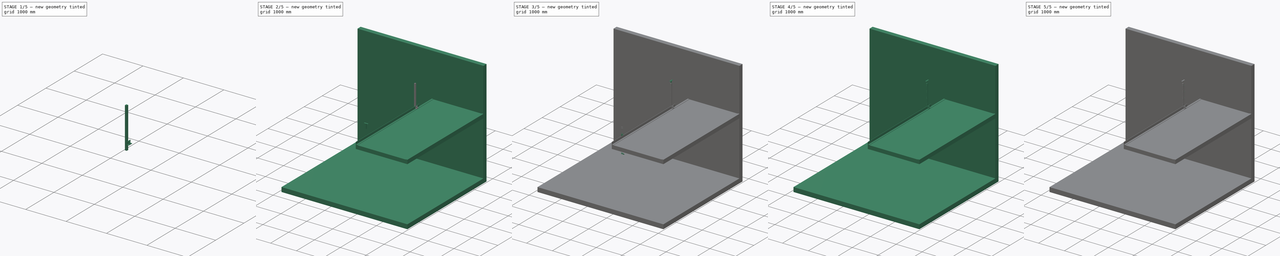
[diagram: build sequence overview — one tinted view per stage of 5, left to right]
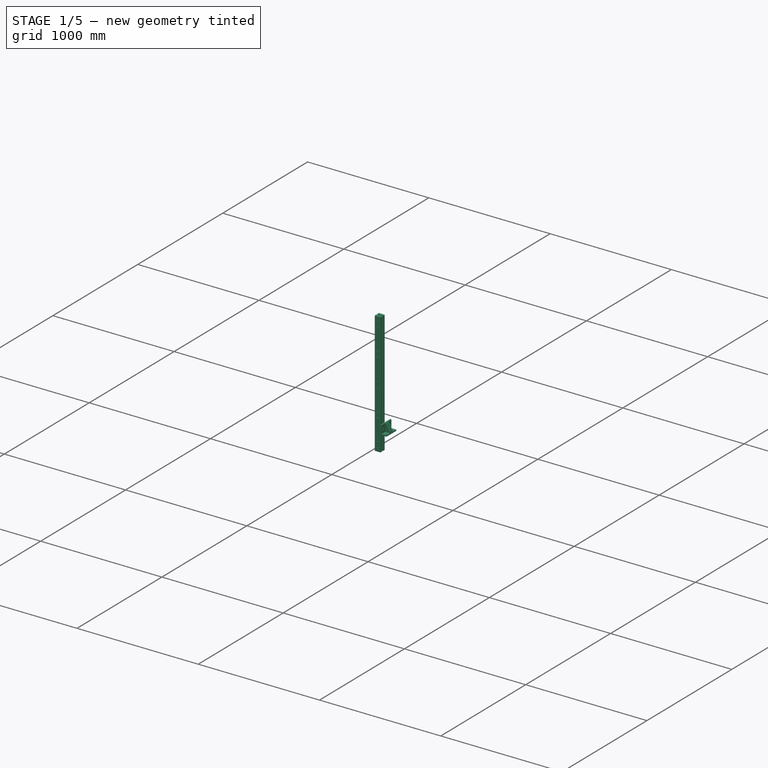
[diagram: stage 1 of 5 — iso view after this stage's code; geometry added in this stage tinted green]
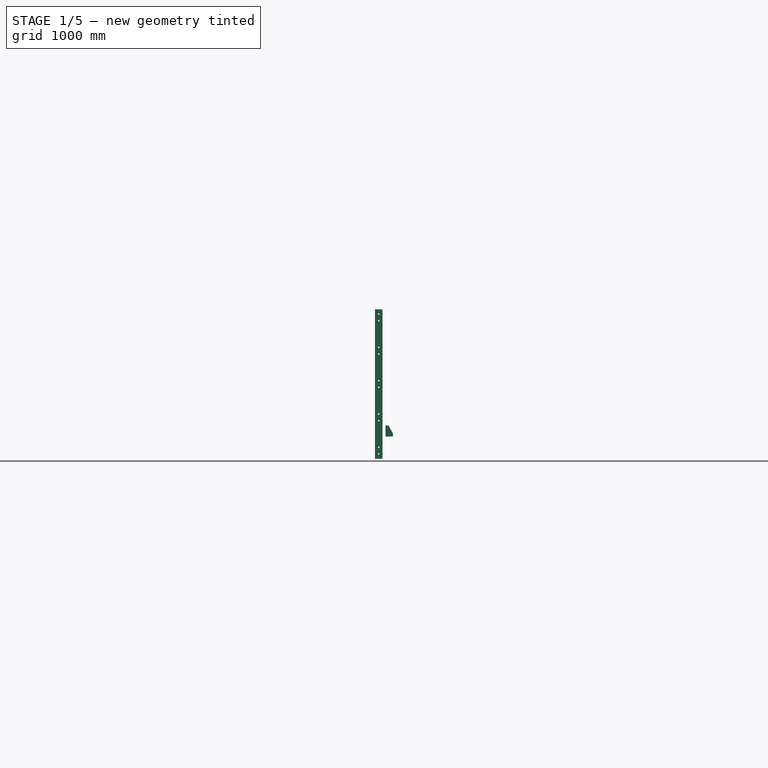
[diagram: stage 1 of 5 — front view after this stage's code; geometry added in this stage tinted green]
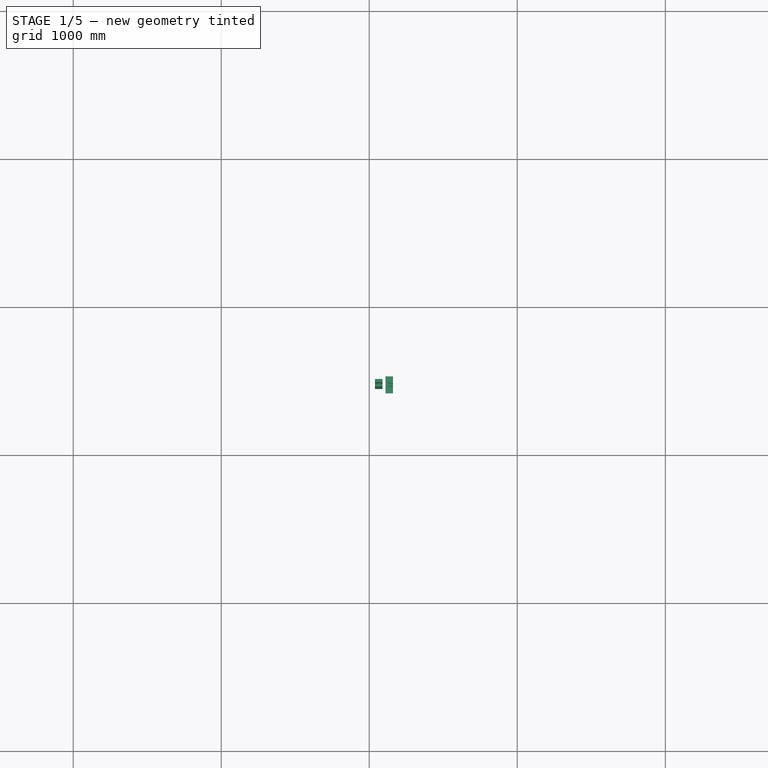
[diagram: stage 1 of 5 — top view after this stage's code; geometry added in this stage tinted green]
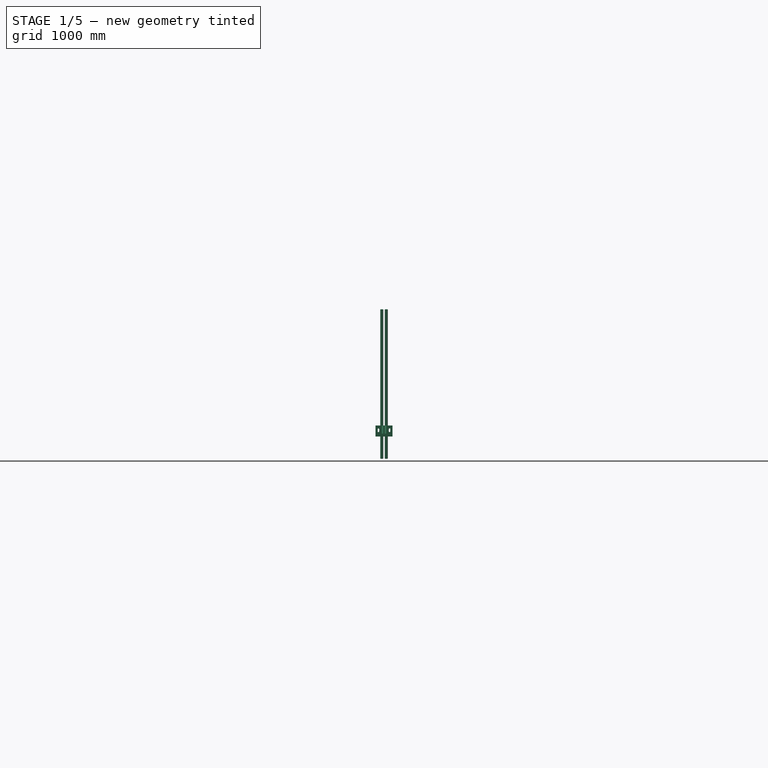
[diagram: stage 1 of 5 — right view after this stage's code; geometry added in this stage tinted green]
FCSTD DOCUMENT  (FreeCAD 0.17R11051 (Git))
Label: loft_railing_element
License: All rights reserved
LicenseURL: http://en.wikipedia.org/wiki/All_rights_reserved
objects: Part::Extrusion×19, Part::Part2DObjectPython×18, Part::FeaturePython×16, Part::Cut×9, Part::Compound×8, Part::Chamfer×4, Part::Feature×4, Sketcher::SketchObject×4, PartDesign::Pad×3, TechDraw::DrawProjGroupItem×3, PartDesign::ShapeBinder×2, PartDesign::Body×2, TechDraw::DrawViewPart×2, Part::Box×1, Part::Mirroring×1, Part::Torus×1, Part::Cylinder×1, Part::MultiFuse×1, App::DocumentObjectGroup×1, PartDesign::Pocket×1, +4 more types
note: 100 computed .brp shape members not serialized (recipe doc carries the construction recipe); baked Part::Feature solids carry a one-line shape summary decoded from their .brp

FEATURE [Part::Box] Box  label="Cube"
  AttacherType = Attacher::AttachEngine3D
  Height = 1010
  Length = 20
  Placement = pos=(-25,-23,-70) rot=(0,0,1;0rad)
  Width = 50
FEATURE [Part::Mirroring] mirror  label="Mirror of Cube"
  Base = (0,0,0)
  Normal = (1,0,0)
  Source = -> Box
FEATURE [Part::Compound] Compound004
  Links = -> [mirror,Box]
  Placement = pos=(89.3902,-413,110) rot=(0,0,1;0rad)
FEATURE [Part::Chamfer] Chamfer  label="railing_wood"
  Base = -> Compound004
  Edges = 24 edges r=2: [Edge1,Edge2,Edge3,Edge4,Edge5,Edge6,Edge7,Edge8,Edge9,Edge10,Edge11,Edge12,Edge13,Edge14,Edge15,Edge16,Edge17,Edge18,Edge19,Edge20,Edge21,Edge22,Edge23,Edge24]
FEATURE [Part::Part2DObjectPython] Circle  # Draft 2D object (typed FeaturePython)
  FirstAngle = 0
  LastAngle = 0
  MakeFace = true
  Placement = pos=(64.3902,-411,100) rot=(0.57735,-0.57735,-0.57735;2.0944rad)
  Radius = 5
  Support = -> [Chamfer]
FEATURE [Part::Extrusion] Extrude
  Base = -> Circle
  Dir = (1,0,0)
  DirMode = 0
  FaceMakerClass = Part::FaceMakerBullseye
  LengthFwd = 80
  LengthRev = 0
  Placement = pos=(25,0,0) rot=(0,0,1;0rad)
  Solid = false
  Symmetric = true
FEATURE [Part::FeaturePython] Array  # Draft array (typed FeaturePython)
  Angle = 360
  ArrayType = 0
  Axis = (0,0,1)
  Base = -> Extrude
  Center = (0,0,0)
  Fuse = false
  IntervalAxis = (0,0,0)
  IntervalX = (0,0,45)
  IntervalY = (0,0,225)
  IntervalZ = (0,0,0)
  NumberPolar = 1
  NumberX = 2
  NumberY = 5
  NumberZ = 1
  Placement = pos=(0,0,-27.5) rot=(0,0,1;0rad)
FEATURE [Part::Cut] Cut  label="cutted_railing_wood"
  Base = -> Chamfer
  Tool = -> Array
FEATURE [Part::FeaturePython] Panel  # WARN: FeaturePython — macro-defined, semantics opaque (R4)
  Area = 0
  Base = -> Cut
  FaceMaker = 0
  HorizontalArea = 0
  Length = 0
  MoveWithHost = false
  Normal = (0,0,0)
  PerimeterLength = 0
  Placement = pos=(1653,-615.39,2070) rot=(0,0,1;1.5708rad)
  Role = 0
  Sheets = 1
  Thickness = 10
  VerticalArea = 0
  WaveDirection = 0
  WaveHeight = 0
  WaveLength = 0
  WaveType = 0
  Width = 0
FEATURE [Sketcher::SketchObject] Sketch001
  Placement = pos=(0,-526,0) rot=(-1,0,0;1.5708rad)
  sketch-geometry (8):
    g0: LineSegment [constr] StartX=2100 StartY=-2315 StartZ=0 EndX=2100 EndY=-2150 EndZ=0
    g1: LineSegment [constr] StartX=2100 StartY=-2295 StartZ=0 EndX=2120 EndY=-2295 EndZ=0
    g2: LineSegment StartX=2110 StartY=-2335 StartZ=0 EndX=2110 EndY=-2260 EndZ=0
    g3: LineSegment StartX=2110 StartY=-2260 StartZ=0 EndX=2160 EndY=-2260 EndZ=0
    g4: LineSegment StartX=2160 StartY=-2260 StartZ=0 EndX=2160 EndY=-2270 EndZ=0
    g5: LineSegment StartX=2160 StartY=-2270 StartZ=0 EndX=2120 EndY=-2270 EndZ=0
    g6: LineSegment StartX=2120 StartY=-2270 StartZ=0 EndX=2120 EndY=-2335 EndZ=0
    g7: LineSegment StartX=2120 StartY=-2335 StartZ=0 EndX=2110 EndY=-2335 EndZ=0
  constraints (27):
    c: Vertical(g0)
    c: Horizontal(g1)
    c: Coincident(g2,g3)
    c: Coincident(g3,g4)
    c: Coincident(g4,g5)
    c: Coincident(g5,g6)
    c: Coincident(g6,g7)
    c: Coincident(g7,g2)
    c: Horizontal(g7)
    c: Horizontal(g5)
    c: Horizontal(g3)
    c: Vertical(g2)
    c: Vertical(g6)
    c: Vertical(g4)
    c: Equal(g7,g4)
    c: DistanceX(g7,g7) = 10
    c: DistanceY(g0,g2) = 55
    c: DistanceX(g0) = 2100
    c: DistanceY(g0) = -2150
    c: DistanceY(g0,g0) = 165
    c: DistanceX(g0,g2) = 10
    c: DistanceX(g3,g3) = 50
    c: DistanceY(g6,g1) = 40
    c: PointOnObject(g1,g6)
    c: PointOnObject(g1,g0)
    c: DistanceY(g0,g1) = 20
    c: DistanceY(g2,g2) = 75
FEATURE [Part::Feature] room_01_cs
  Placement = pos=(0,1146.3,0) rot=(0,0,1;0rad)
  shape: bbox 4875 x 3e-07 x 2522 mm, 0 faces, 0 solids (baked)
FEATURE [App::DocumentObjectGroup] Group  label="ref"
  Group = -> [room_01,room_01_cs]
FEATURE [PartDesign::Pad] Pad001
  Length = 115
  Length2 = 100
  Midplane = true
  Placement = pos=(0,-526,0) rot=(-1,0,0;1.5708rad)
  Profile = -> Sketch001
  Type = 0
FEATURE [Sketcher::SketchObject] Sketch002
  ExternalGeometry = -> [Pad001]
  MapMode = 5
  Placement = pos=(2120,-526,0) rot=(0,1,0;1.5708rad)
  Support = -> [Pad001]
  sketch-geometry (9):
    g0: ArcOfCircle CenterX=-2310 CenterY=-37.5 CenterZ=0 NormalX=0 NormalY=0 NormalZ=1 Radius=5 StartAngle=1.5708 EndAngle=4.71239
    g1: ArcOfCircle CenterX=-2295 CenterY=-37.5 CenterZ=0 NormalX=0 NormalY=0 NormalZ=1 Radius=5 StartAngle=4.71239 EndAngle=7.85398
    g2: LineSegment StartX=-2310 StartY=-42.5 StartZ=0 EndX=-2295 EndY=-42.5 EndZ=0
    g3: LineSegment StartX=-2310 StartY=-32.5 StartZ=0 EndX=-2295 EndY=-32.5 EndZ=0
    g4: ArcOfCircle CenterX=-2310 CenterY=37.5 CenterZ=0 NormalX=0 NormalY=0 NormalZ=1 Radius=5 StartAngle=1.5708 EndAngle=4.71239
    g5: ArcOfCircle CenterX=-2295 CenterY=37.5 CenterZ=0 NormalX=0 NormalY=0 NormalZ=1 Radius=5 StartAngle=4.71239 EndAngle=7.85398
    g6: LineSegment StartX=-2310 StartY=32.5 StartZ=0 EndX=-2295 EndY=32.5 EndZ=0
    g7: LineSegment StartX=-2310 StartY=42.5 StartZ=0 EndX=-2295 EndY=42.5 EndZ=0
    g8: LineSegment [constr] StartX=-2295 StartY=-57.5 StartZ=0 EndX=-2295 EndY=57.5 EndZ=0
  constraints (25):
    c: Tangent(g0,g3) = 1.5708
    c: Tangent(g0,g2) = -1.5708
    c: Tangent(g2,g1) = -1.5708
    c: Tangent(g3,g1) = 1.5708
    c: Horizontal(g2)
    c: Equal(g0,g1)
    c: DistanceY(g0,g-6) = -20
    c: Radius(g0) = 5
    c: Tangent(g4,g7) = 1.5708
    c: Tangent(g4,g6) = -1.5708
    c: Tangent(g6,g5) = -1.5708
    c: Tangent(g7,g5) = 1.5708
    c: Horizontal(g6)
    c: Equal(g4,g5)
    c: Equal(g4,g0)
    c: Equal(g6,g3)
    c: Symmetric(g4,g0,g-1)
    c: PointOnObject(g8,g-6)
    c: PointOnObject(g8,g-3)
    c: Vertical(g8)
    c: DistanceX(g-6,g8) = 40
    c: PointOnObject(g1,g8)
    c: DistanceX(g2,g2) = 15
    c: DistanceX(g-6,g0) = 25
    c: DistanceX(g1,g-6) = 25
FEATURE [PartDesign::Pocket] Pocket
  BaseFeature = -> Pad001
  Length = 5
  Placement = pos=(0,-526,0) rot=(-1,0,0;1.5708rad)
  Profile = -> Sketch002
  Type = 1
FEATURE [PartDesign::ShapeBinder] CopyDWire001
FEATURE [PartDesign::Plane] DatumPlane
  MapMode = 5
  Placement = pos=(3.1e-11,-526,0) rot=(0,0.707107,0.707107;3.14159rad)
  Support = -> [CopyDWire001]
FEATURE [Sketcher::SketchObject] Sketch003
  ExternalGeometry = -> [Pocket]
  MapMode = 5
  Placement = pos=(3.1e-11,-526,0) rot=(0,0.707107,0.707107;3.14159rad)
  Support = -> [DatumPlane]
  sketch-geometry (5):
    g0: LineSegment StartX=-2160 StartY=2270 StartZ=0 EndX=-2160 EndY=2280 EndZ=0
    g1: LineSegment StartX=-2160 StartY=2280 StartZ=0 EndX=-2130 EndY=2335 EndZ=0
    g2: LineSegment StartX=-2130 StartY=2335 StartZ=0 EndX=-2120 EndY=2335 EndZ=0
    g3: LineSegment StartX=-2120 StartY=2335 StartZ=0 EndX=-2120 EndY=2270 EndZ=0
    g4: LineSegment StartX=-2120 StartY=2270 StartZ=0 EndX=-2160 EndY=2270 EndZ=0
  constraints (12):
    c: Coincident(g-4,g0)
    c: Vertical(g0)
    c: Coincident(g0,g1)
    c: Coincident(g1,g2)
    c: Coincident(g2,g-3)
    c: Coincident(g2,g3)
    c: Coincident(g3,g-4)
    c: Coincident(g3,g4)
    c: Coincident(g4,g0)
    c: Horizontal(g2)
    c: Equal(g2,g0)
    c: DistanceX(g2,g2) = 10
FEATURE [PartDesign::Pad] Pad002
  BaseFeature = -> Pocket
  Length = 30
  Length2 = 100
  Midplane = true
  Placement = pos=(0,-526,0) rot=(-1,0,0;1.5708rad)
  Profile = -> Sketch003
  Type = 0
FEATURE [PartDesign::Body] Body001
  Group = -> [Sketch001,Pad001,Sketch002,Pocket,DatumPlane,CopyDWire001,Sketch003,Pad002]
  Origin = -> Body001Origin
  Tip = -> Pad002
FEATURE [Part::Part2DObjectPython] DWire001  # Draft 2D object (typed FeaturePython)
  ChamferSize = 0
  Closed = true
  End = (2120,-526,2270)
  FilletRadius = 0
  Length = 187.65
  MakeFace = true
  Points = (5) [(2120,-526,2335),(2130,-526,2335),(2160,-526,2280),(2160,-526,2270),(2120,-526,2270)]
  Start = (2120,-526,2335)
  Subdivisions = 0
FEATURE [Part::Extrusion] Extrude015
  Base = -> DWire001
  Dir = (0,1,0)
  DirMode = 0
  FaceMakerClass = Part::FaceMakerBullseye
  LengthFwd = 10
  LengthRev = 0
  Solid = false
  Symmetric = true
FEATURE [Part::Cut] Cut006
  Base = -> Body001
  Tool = -> Extrude015
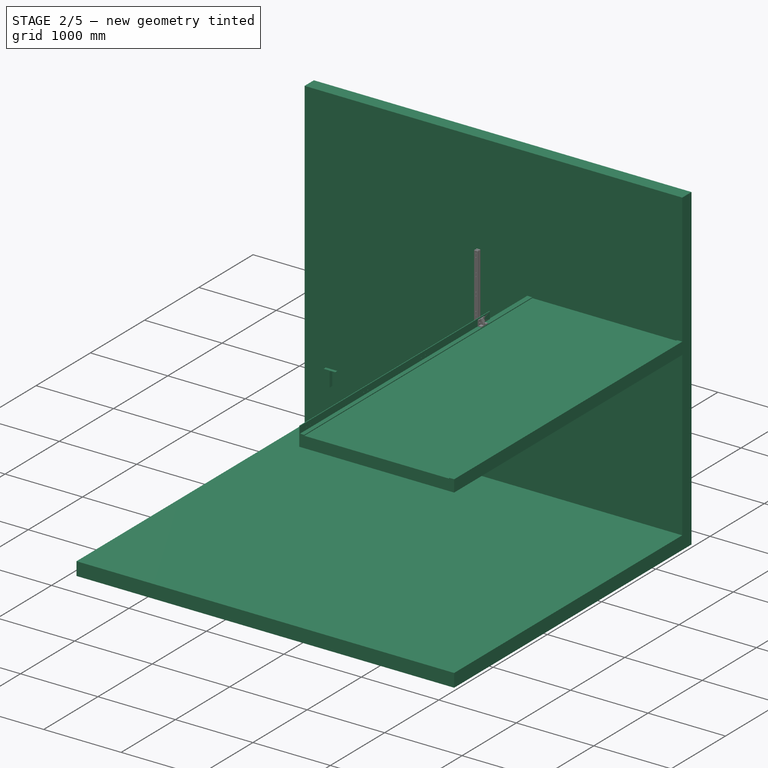
[diagram: stage 2 of 5 — iso view after this stage's code; geometry added in this stage tinted green]
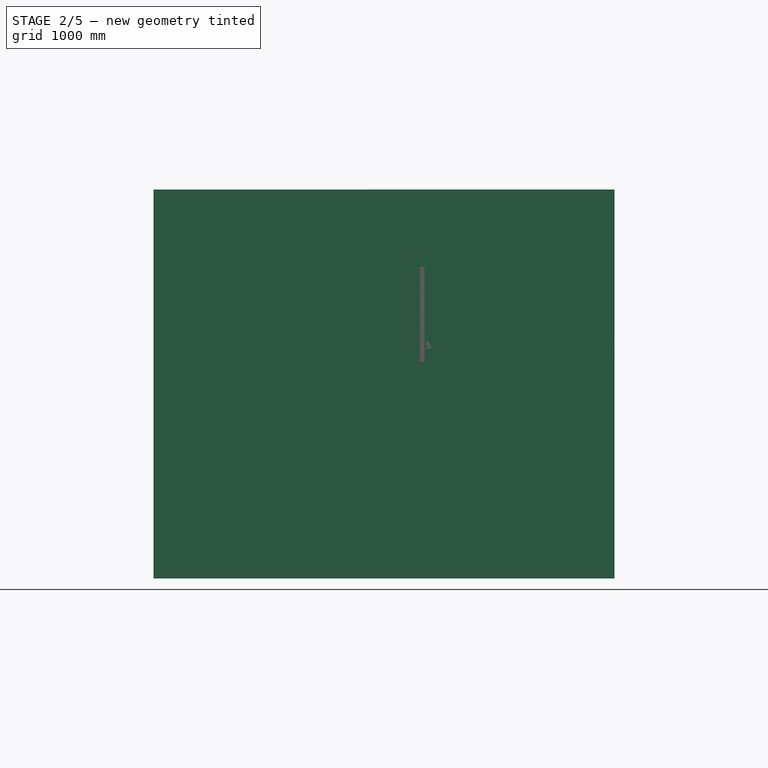
[diagram: stage 2 of 5 — front view after this stage's code; geometry added in this stage tinted green]
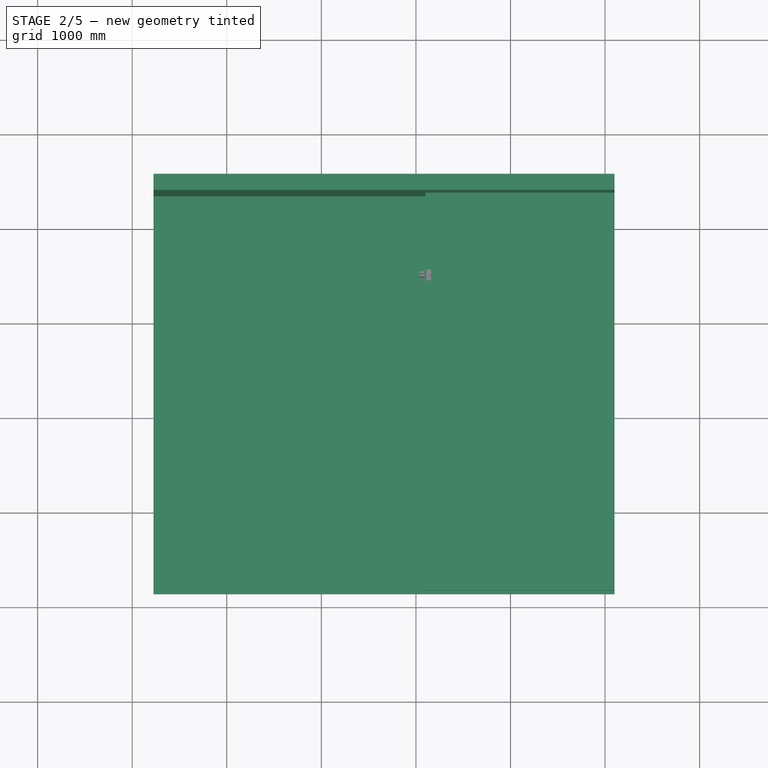
[diagram: stage 2 of 5 — top view after this stage's code; geometry added in this stage tinted green]
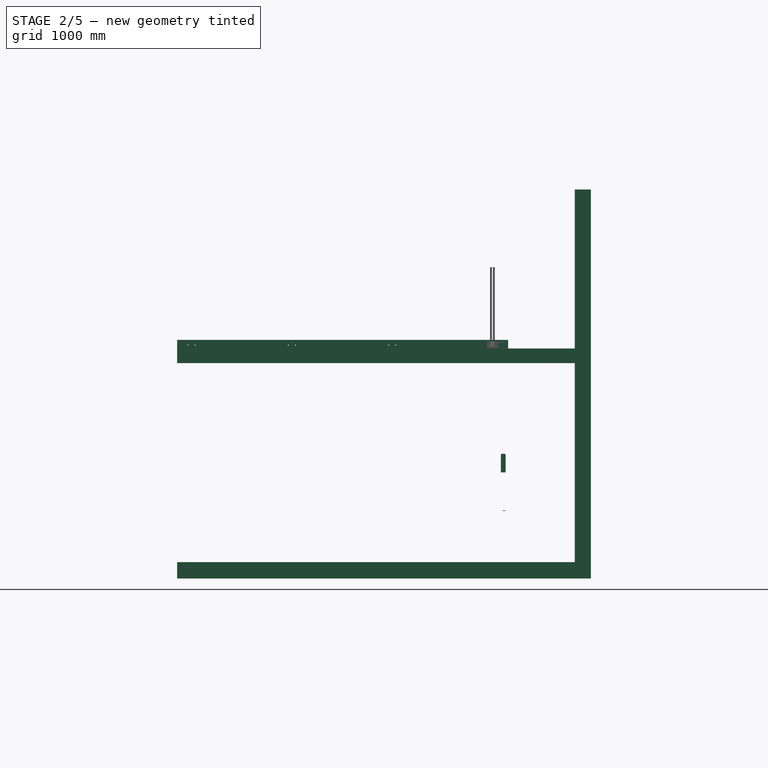
[diagram: stage 2 of 5 — right view after this stage's code; geometry added in this stage tinted green]
FEATURE [Part::Part2DObjectPython] Circle008  # Draft 2D object (typed FeaturePython)
  FirstAngle = 0
  LastAngle = 0
  MakeFace = true
  Placement = pos=(89.3902,-420.3,545) rot=(1,0,0;1.5708rad)
  Radius = 2.5
FEATURE [Part::Extrusion] Extrude013
  Base = -> Circle008
  Dir = (0,1,0)
  DirMode = 0
  FaceMakerClass = Part::FaceMakerBullseye
  LengthFwd = 35
  LengthRev = 0
  Solid = false
  Symmetric = false
FEATURE [Part::Part2DObjectPython] Rectangle003  # Draft 2D object (typed FeaturePython)
  ChamferSize = 0
  Columns = 1
  FilletRadius = 0
  Height = 10
  Length = 50
  MakeFace = true
  Placement = pos=(84.3902,-436,950) rot=(0.707107,0.707107,0;3.14159rad)
  Rows = 1
FEATURE [Part::Extrusion] Extrude014
  Base = -> Rectangle003
  Dir = (0,0,1)
  DirMode = 0
  FaceMakerClass = Part::FaceMakerBullseye
  LengthFwd = 190
  LengthRev = 0
  Solid = false
  Symmetric = false
FEATURE [PartDesign::ShapeBinder] CopyCut003
  Placement = pos=(84.3902,-436,1140) rot=(0.707107,0.707107,0;3.14159rad)
FEATURE [Sketcher::SketchObject] Sketch
  ExternalGeometry = -> [CopyCut003]
  MapMode = 5
  Placement = pos=(84.3902,-436,1140) rot=(0,0,1;1.5708rad)
  Support = -> [CopyCut003]
  sketch-geometry (8):
    g0: LineSegment StartX=5 StartY=-80 StartZ=0 EndX=45 EndY=-80 EndZ=0
    g1: LineSegment StartX=45 StartY=-80 StartZ=0 EndX=45 EndY=70 EndZ=0
    g2: LineSegment StartX=45 StartY=70 StartZ=0 EndX=5 EndY=70 EndZ=0
    g3: LineSegment StartX=5 StartY=70 StartZ=0 EndX=5 EndY=-80 EndZ=0
    g4: LineSegment [constr] StartX=25 StartY=-5 StartZ=0 EndX=50 EndY=-5 EndZ=0
    g5: LineSegment [constr] StartX=25 StartY=-5 StartZ=0 EndX=0 EndY=-5 EndZ=0
    g6: Circle CenterX=25.7359 CenterY=45 CenterZ=0 NormalX=0 NormalY=0 NormalZ=1 Radius=2.5
    g7: Circle CenterX=24.2641 CenterY=-55 CenterZ=0 NormalX=0 NormalY=0 NormalZ=1 Radius=2.5
  constraints (22):
    c: Coincident(g0,g1)
    c: Coincident(g1,g2)
    c: Coincident(g2,g3)
    c: Coincident(g3,g0)
    c: Horizontal(g0)
    c: Horizontal(g2)
    c: Vertical(g1)
    c: Vertical(g3)
    c: DistanceY(g3,g3) = 150
    c: DistanceX(g2,g2) = 40
    c: PointOnObject(g4,g-6)
    c: Symmetric(g-6,g-6,g4)
    c: Symmetric(g0,g1,g4)
    c: Coincident(g5,g4)
    c: Horizontal(g5)
    c: PointOnObject(g5,g-4)
    c: Equal(g5,g4)
    c: Symmetric(g0,g2,g4)
    c: Symmetric(g6,g7,g4)
    c: Radius(g6) = 2.5
    c: Equal(g6,g7)
    c: DistanceY(g6,g1) = 25
FEATURE [PartDesign::Pad] Pad
  Length = 6
  Length2 = 100
  Placement = pos=(84.3902,-436,1140) rot=(0.707107,0.707107,0;3.14159rad)
  Profile = -> Sketch
  Type = 0
FEATURE [Part::FeaturePython] room_01  # a2plus imported part (geometry in sourceFile) (typed FeaturePython)
  fixedPosition = true
  sourceFile = room.fcstd
  timeLastImport = 1.49479e+09
  updateColors = true
FEATURE [Part::Part2DObjectPython] Circle009  # Draft 2D object (typed FeaturePython)
  FirstAngle = 0
  LastAngle = 0
  MakeFace = true
  Placement = pos=(32.2,-375,44) rot=(1,0,0;1.5708rad)
  Radius = 12.5
FEATURE [Part::Extrusion] Extrude016
  Base = -> Circle009
  Dir = (0,-1,0)
  DirMode = 0
  FaceMakerClass = Part::FaceMakerBullseye
  LengthFwd = 2
  LengthRev = 0
  Solid = false
  Symmetric = false
FEATURE [Part::Part2DObjectPython] Circle010  # Draft 2D object (typed FeaturePython)
  FirstAngle = 0
  LastAngle = 0
  MakeFace = true
  Placement = pos=(32.2,-375,44) rot=(1,0,0;1.5708rad)
  Radius = 5
FEATURE [Part::Extrusion] Extrude017
  Base = -> Circle010
  Dir = (0,-1,0)
  DirMode = 0
  FaceMakerClass = Part::FaceMakerBullseye
  LengthFwd = 2
  LengthRev = 0
  Solid = false
  Symmetric = false
FEATURE [Part::Cut] Cut007  label="washer004"
  Base = -> Extrude016
  Tool = -> Extrude017
FEATURE [Part::Feature] BOLTS_part011_cs
  Placement = pos=(0,0,-2.5) rot=(0,0,1;0rad)
  shape: bbox 17 x 19.63 x 3e-07 mm, 0 faces, 0 solids (baked)
FEATURE [Part::Extrusion] Extrude004  label="nuts"
  Base = -> BOLTS_part011_cs
  Dir = (0,0,1)
  DirMode = 0
  FaceMakerClass = Part::FaceMakerBullseye
  LengthFwd = 6
  LengthRev = 0
  Placement = pos=(32.2,-341,44) rot=(1,0,0;1.5708rad)
  Solid = true
  Symmetric = false
FEATURE [Part::FeaturePython] Component  label="washer001"  # WARN: FeaturePython — macro-defined, semantics opaque (R4)
  CloneOf = -> Cut007
  HorizontalArea = 0
  MoveWithHost = false
  PerimeterLength = 0
  Placement = pos=(0,28,0) rot=(0,0,1;0rad)
  Role = 0
  VerticalArea = 0
FEATURE [Part::Part2DObjectPython] Circle011  # Draft 2D object (typed FeaturePython)
  FirstAngle = 0
  LastAngle = 0
  MakeFace = true
  Placement = pos=(32.2,-311,44) rot=(-1,0,0;1.5708rad)
  Radius = 5
FEATURE [Part::Extrusion] Extrude018
  Base = -> Circle011
  Dir = (0,-1,0)
  DirMode = 0
  FaceMakerClass = Part::FaceMakerBullseye
  LengthFwd = 26
  LengthRev = 0
  Solid = false
  Symmetric = false
FEATURE [Part::Feature] BOLTS_part001001  label="Hexagon head bolt DIN 931 M10 - 66.002"
  Placement = pos=(32.2,-383.4,44) rot=(-1,0,0;1.5708rad)
  shape: bbox 17 x 72.4 x 19.63 mm, 11 faces (baked)
FEATURE [Part::Cut] Cut008
  Base = -> BOLTS_part001001
  Tool = -> Extrude018
FEATURE [Part::Compound] Compound010  label="fastener_and_nuts003"
  Links = -> [Cut007,Extrude004,Component,Cut008]
  Placement = pos=(2469,-456.3,2251) rot=(0,0,-1;1.5708rad)
FEATURE [Part::FeaturePython] Array011  label="plate_fasteners"  # Draft array (typed FeaturePython)
  Angle = 360
  ArrayType = 0
  Axis = (0,0,1)
  Base = -> Compound010
  Center = (0,0,0)
  Fuse = false
  IntervalAxis = (0,0,0)
  IntervalX = (0,-75,0)
  IntervalY = (0,1,0)
  IntervalZ = (0,0,0)
  NumberPolar = 1
  NumberX = 2
  NumberY = 1
  NumberZ = 1
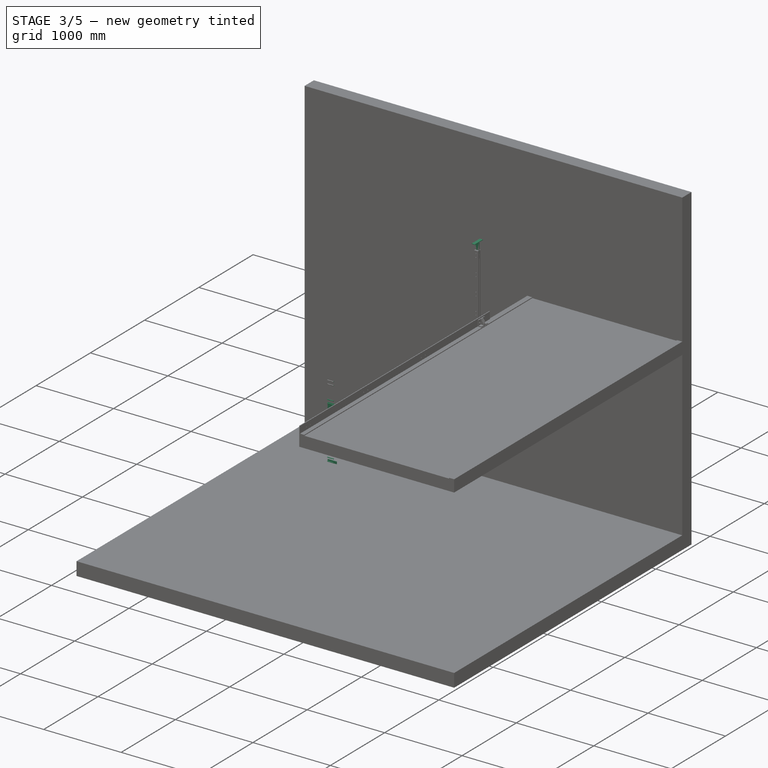
[diagram: stage 3 of 5 — iso view after this stage's code; geometry added in this stage tinted green]
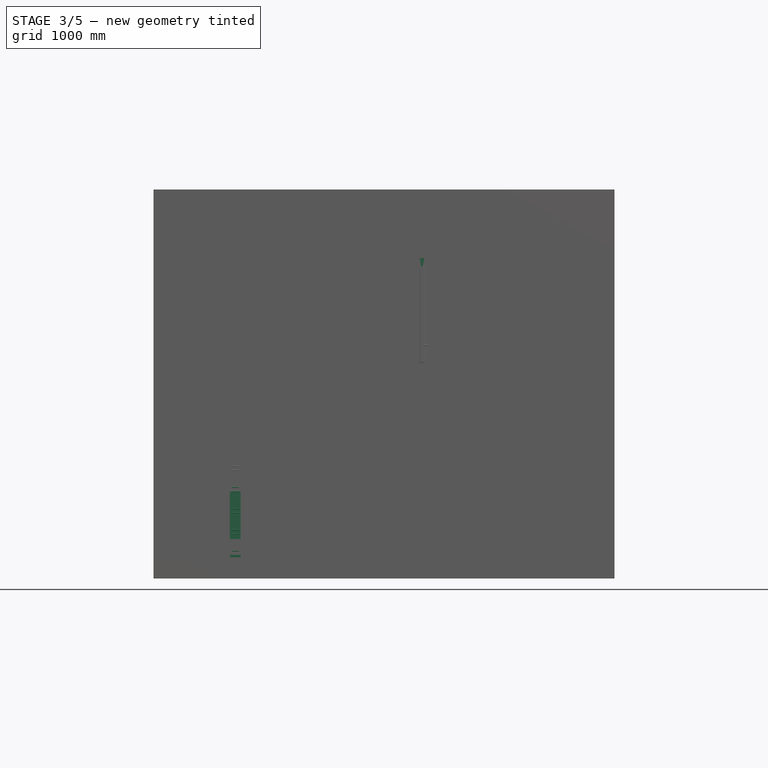
[diagram: stage 3 of 5 — front view after this stage's code; geometry added in this stage tinted green]
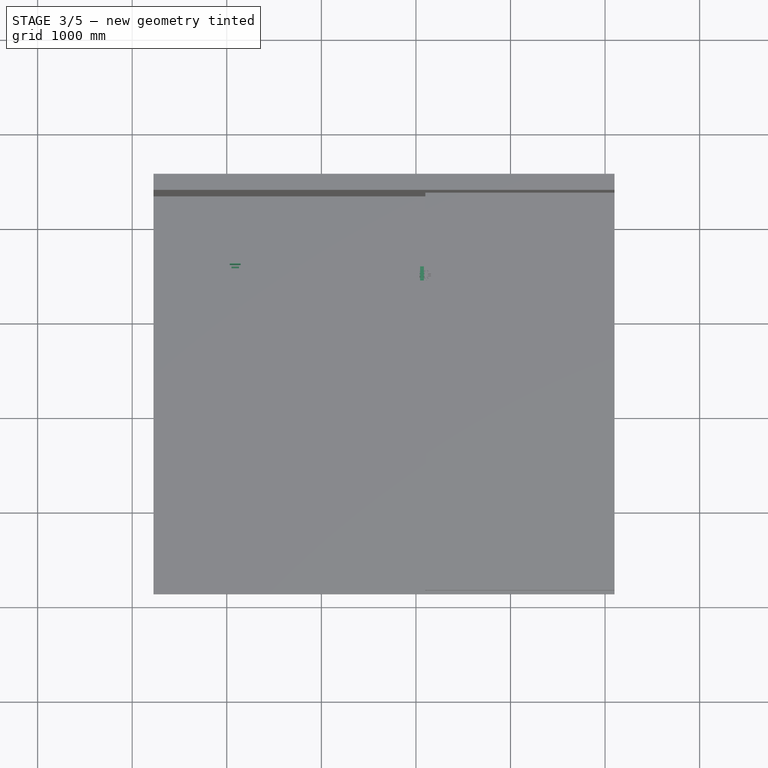
[diagram: stage 3 of 5 — top view after this stage's code; geometry added in this stage tinted green]
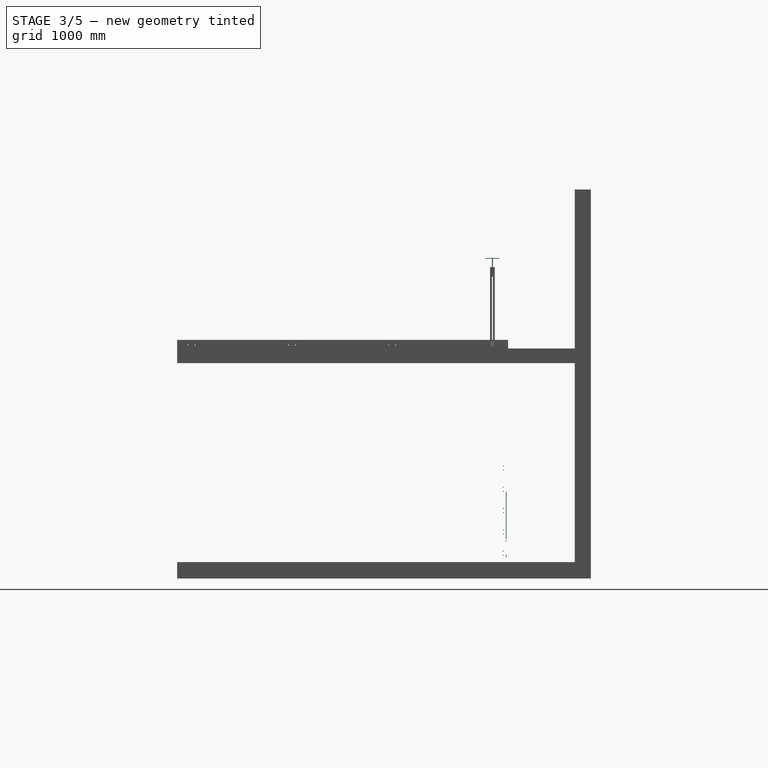
[diagram: stage 3 of 5 — right view after this stage's code; geometry added in this stage tinted green]
FEATURE [Part::Part2DObjectPython] DWire  # Draft 2D object (typed FeaturePython)
  ChamferSize = 0
  Closed = true
  End = (146.89,-377,80)
  FilletRadius = 0
  Length = 352
  MakeFace = true
  Points = (8) [(31.8902,-377,80),(31.8902,-383,80),(84.3902,-383,80),(84.3902,-438,80),(94.3902,-438,80),(94.3902,-383,80),(146.89,-383,80),(146.89,-377,80)]
  Start = (31.8902,-377,80)
  Subdivisions = 0
FEATURE [Part::Extrusion] Extrude009
  Base = -> DWire
  Dir = (0,0,1)
  DirMode = 0
  FaceMakerClass = Part::FaceMakerBullseye
  LengthFwd = 285
  LengthRev = 30
  Solid = false
  Symmetric = false
FEATURE [Part::Part2DObjectPython] Circle005  # Draft 2D object (typed FeaturePython)
  FirstAngle = 0
  LastAngle = 0
  MakeFace = true
  Placement = pos=(51.8902,-385,225) rot=(1,0,0;1.5708rad)
  Radius = 5
FEATURE [Part::Extrusion] Extrude002
  Base = -> Circle005
  Dir = (0,1,0)
  DirMode = 0
  FaceMakerClass = Part::FaceMakerBullseye
  LengthFwd = 8
  LengthRev = 0
  Solid = false
  Symmetric = false
FEATURE [Part::Part2DObjectPython] Rectangle001  # Draft 2D object (typed FeaturePython)
  ChamferSize = 0
  Columns = 1
  FilletRadius = 0
  Height = 6
  Length = 115.1
  MakeFace = true
  Placement = pos=(31.8902,-383,245) rot=(0,0,1;0rad)
  Rows = 1
FEATURE [Part::Extrusion] Extrude003
  Base = -> Rectangle001
  Dir = (0,0,1)
  DirMode = 0
  FaceMakerClass = Part::FaceMakerBullseye
  LengthFwd = 500
  LengthRev = 0
  Solid = false
  Symmetric = false
FEATURE [Part::Part2DObjectPython] Rectangle002  # Draft 2D object (typed FeaturePython)
  ChamferSize = 0
  Columns = 1
  FilletRadius = 0
  Height = 6
  Length = 115
  MakeFace = true
  Placement = pos=(31.8902,-377,50) rot=(1,0,0;3.14159rad)
  Rows = 1
  Support = -> [Extrude009]
FEATURE [Part::Extrusion] Extrude010
  Base = -> Rectangle002
  Dir = (0,0,1)
  DirMode = 0
  FaceMakerClass = Part::FaceMakerBullseye
  LengthFwd = 30
  LengthRev = 0
  Solid = false
  Symmetric = false
FEATURE [Part::Part2DObjectPython] Circle006  # Draft 2D object (typed FeaturePython)
  FirstAngle = 0
  LastAngle = 0
  MakeFace = true
  Placement = pos=(64.3902,-411,100) rot=(0.57735,-0.57735,-0.57735;2.0944rad)
  Radius = 5
FEATURE [Part::Extrusion] Extrude011
  Base = -> Circle006
  Dir = (1,0,0)
  DirMode = 0
  FaceMakerClass = Part::FaceMakerBullseye
  LengthFwd = 80
  LengthRev = 0
  Placement = pos=(25,0,0) rot=(0,0,1;0rad)
  Solid = false
  Symmetric = true
FEATURE [Part::FeaturePython] Array003  # Draft array (typed FeaturePython)
  Angle = 360
  ArrayType = 0
  Axis = (0,0,1)
  Base = -> Extrude011
  Center = (0,0,0)
  Fuse = false
  IntervalAxis = (0,0,0)
  IntervalX = (0,0,45)
  IntervalY = (0,0,225)
  IntervalZ = (0,0,0)
  NumberPolar = 1
  NumberX = 2
  NumberY = 5
  NumberZ = 1
  Placement = pos=(0,0,-27.5) rot=(0,0,1;0rad)
FEATURE [Part::Part2DObjectPython] Circle007  # Draft 2D object (typed FeaturePython)
  FirstAngle = 0
  LastAngle = 0
  MakeFace = true
  Placement = pos=(64.3902,-411,100) rot=(0.57735,-0.57735,-0.57735;2.0944rad)
  Radius = 5
FEATURE [Part::Extrusion] Extrude012
  Base = -> Circle007
  Dir = (1,0,0)
  DirMode = 0
  FaceMakerClass = Part::FaceMakerBullseye
  LengthFwd = 80
  LengthRev = 0
  Placement = pos=(25,0,0) rot=(0,0,1;0rad)
  Solid = false
  Symmetric = true
FEATURE [Part::FeaturePython] Array009  # Draft array (typed FeaturePython)
  Angle = 360
  ArrayType = 0
  Axis = (0,0,1)
  Base = -> Extrude012
  Center = (0,0,0)
  Fuse = false
  IntervalAxis = (0,0,0)
  IntervalX = (0,0,45)
  IntervalY = (0,0,225)
  IntervalZ = (0,0,0)
  NumberPolar = 1
  NumberX = 2
  NumberY = 5
  NumberZ = 1
  Placement = pos=(0,0,-27.5) rot=(0,0,1;0rad)
FEATURE [Part::FeaturePython] Array010  # Draft array (typed FeaturePython)
  Angle = 360
  ArrayType = 0
  Axis = (0,0,1)
  Base = -> Extrude013
  Center = (0,0,0)
  Fuse = false
  IntervalAxis = (0,0,0)
  IntervalX = (0,0,225)
  IntervalY = (0,0,0)
  IntervalZ = (0,0,0)
  NumberPolar = 1
  NumberX = 3
  NumberY = 0
  NumberZ = 1
FEATURE [Part::Compound] Compound008
  Links = -> [Array010,Array009]
FEATURE [Part::Chamfer] Chamfer003
  Base = -> Extrude014
  Edges = 2 edges r=5: [Edge6,Edge11]
FEATURE [Part::Cut] Cut003
  Base = -> Chamfer003
  Tool = -> Compound008
FEATURE [PartDesign::Body] Body
  Group = -> [CopyCut003,Sketch,Pad]
  Origin = -> BodyOrigin
  Tip = -> Pad
FEATURE [Part::Compound] Compound009
  Links = -> [Body,Cut003]
  Placement = pos=(2475,-436.61,2070) rot=(0,0,-1;1.5708rad)
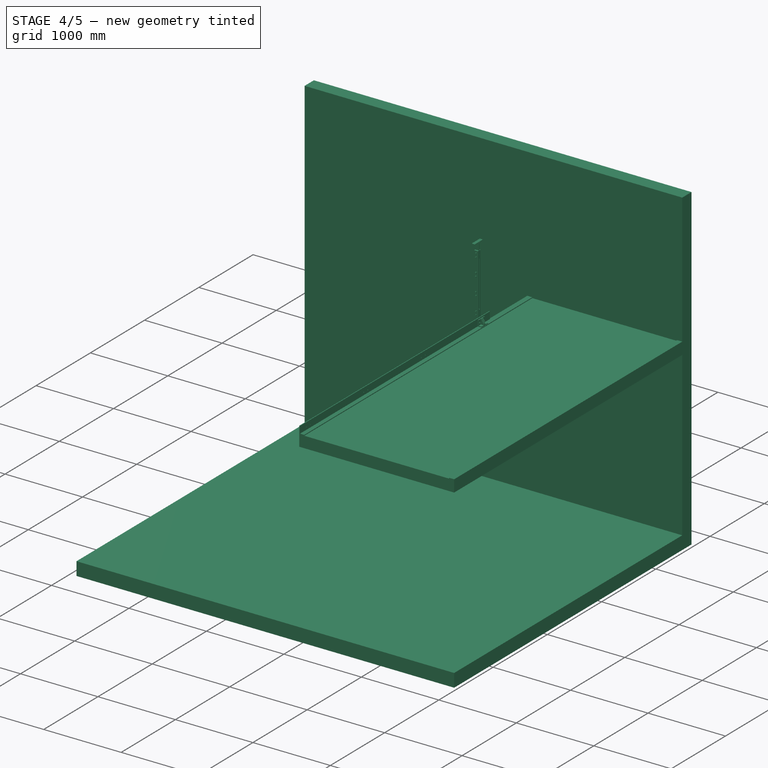
[diagram: stage 4 of 5 — iso view after this stage's code; geometry added in this stage tinted green]
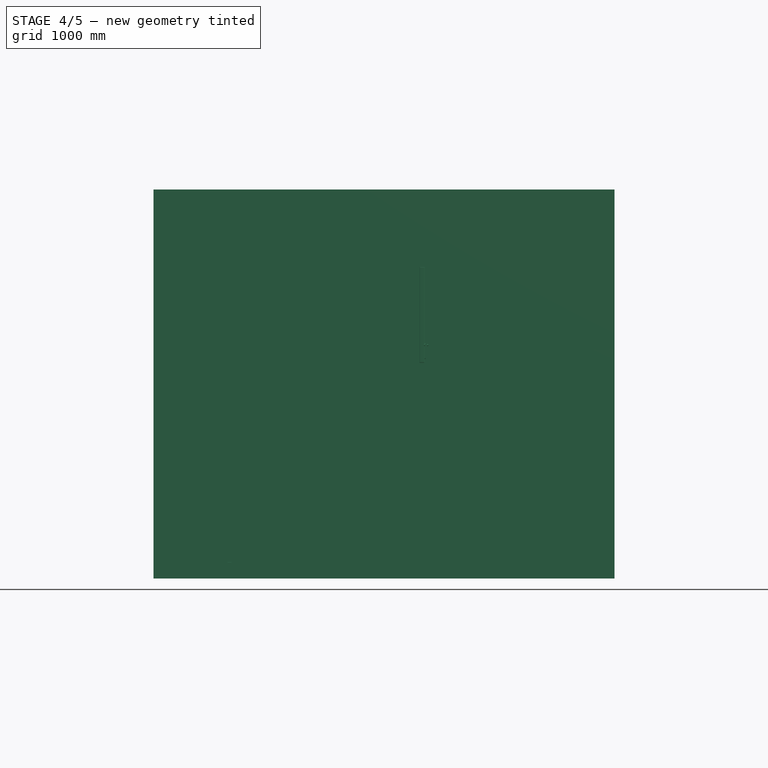
[diagram: stage 4 of 5 — front view after this stage's code; geometry added in this stage tinted green]
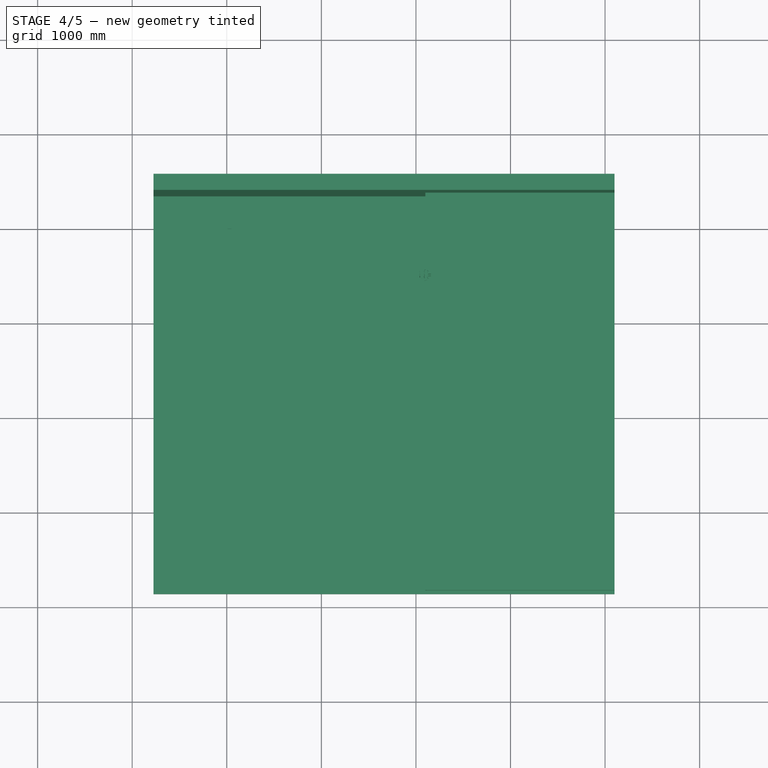
[diagram: stage 4 of 5 — top view after this stage's code; geometry added in this stage tinted green]
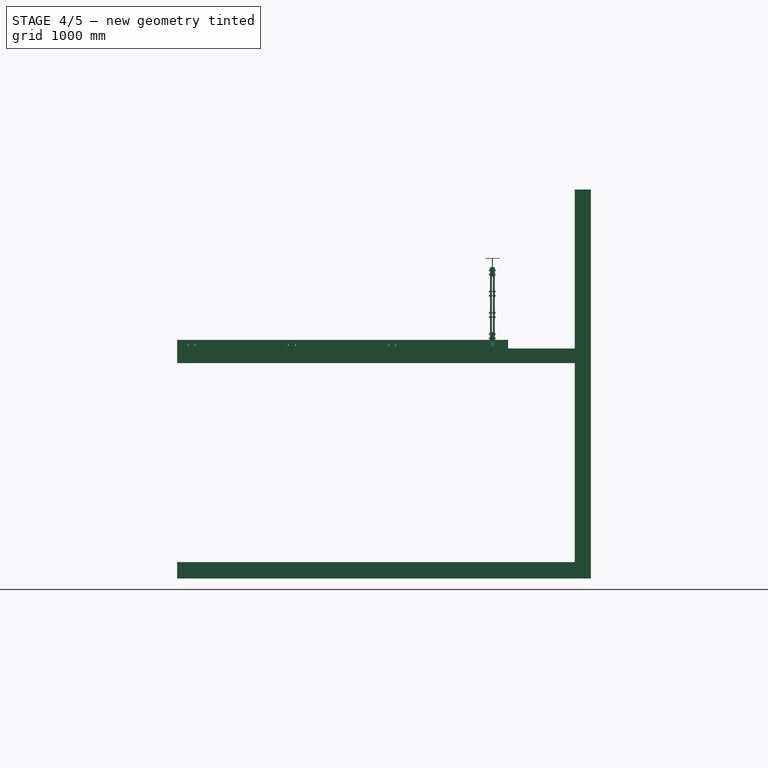
[diagram: stage 4 of 5 — right view after this stage's code; geometry added in this stage tinted green]
FEATURE [Part::Cylinder] Cylinder
  Angle = 360
  AttacherType = Attacher::AttachEngine3D
  Height = 40
  Placement = pos=(10,0,0) rot=(0,1,0;1.5708rad)
  Radius = 2.5
FEATURE [Part::Part2DObjectPython] Circle003  # Draft 2D object (typed FeaturePython)
  FirstAngle = 0
  LastAngle = 0
  MakeFace = true
  Placement = pos=(32.2,-375,44) rot=(1,0,0;1.5708rad)
  Radius = 12.5
FEATURE [Part::Extrusion] Extrude007
  Base = -> Circle003
  Dir = (0,-1,0)
  DirMode = 0
  FaceMakerClass = Part::FaceMakerBullseye
  LengthFwd = 2
  LengthRev = 0
  Solid = false
  Symmetric = false
FEATURE [Part::FeaturePython] Component003  label="nuts001"  # WARN: FeaturePython — macro-defined, semantics opaque (R4)
  HorizontalArea = 0
  MoveWithHost = false
  PerimeterLength = 0
  Placement = pos=(32.2,-317,44) rot=(1,0,0;1.5708rad)
  Role = 0
  VerticalArea = 0
FEATURE [Part::Part2DObjectPython] Circle004  # Draft 2D object (typed FeaturePython)
  FirstAngle = 0
  LastAngle = 0
  MakeFace = true
  Placement = pos=(32.2,-375,44) rot=(1,0,0;1.5708rad)
  Radius = 5
FEATURE [Part::Extrusion] Extrude008
  Base = -> Circle004
  Dir = (0,-1,0)
  DirMode = 0
  FaceMakerClass = Part::FaceMakerBullseye
  LengthFwd = 2
  LengthRev = 0
  Solid = false
  Symmetric = false
FEATURE [Part::Cut] Cut004  label="washer"
  Base = -> Extrude007
  Tool = -> Extrude008
FEATURE [Part::FeaturePython] Component002  label="washer003"  # WARN: FeaturePython — macro-defined, semantics opaque (R4)
  CloneOf = -> Cut004
  HorizontalArea = 0
  MoveWithHost = false
  PerimeterLength = 0
  Placement = pos=(0,52,0) rot=(0,0,1;0rad)
  Role = 0
  VerticalArea = 0
FEATURE [Part::Feature] BOLTS_part  label="Hexagon head bolt DIN 931 M10 - 66.0"
  Placement = pos=(32.2,-383.4,44) rot=(-1,0,0;1.5708rad)
  shape: bbox 17 x 72.4 x 19.63 mm, 11 faces (baked)
FEATURE [Part::Compound] Compound006  label="fastener_and_nuts"
  Links = -> [Cut004,Component003,Component002,BOLTS_part]
  Placement = pos=(439.39,-378.8,28.5) rot=(0,0,-1;1.5708rad)
FEATURE [Part::FeaturePython] Array007  label="railing_fastener"  # Draft array (typed FeaturePython)
  Angle = 360
  ArrayType = 0
  Axis = (0,0,1)
  Base = -> Compound006
  Center = (0,0,0)
  Fuse = false
  IntervalAxis = (0,0,0)
  IntervalX = (0,0,45)
  IntervalY = (0,0,225)
  IntervalZ = (630,0,615)
  NumberPolar = 1
  NumberX = 2
  NumberY = 5
  NumberZ = 0
  Placement = pos=(2475,-436.61,2070) rot=(0,0,-1;1.5708rad)
FEATURE [Part::FeaturePython] Array008  # Draft array (typed FeaturePython)
  Angle = 360
  ArrayType = 0
  Axis = (0,0,1)
  Base = -> Extrude002
  Center = (0,0,0)
  Fuse = false
  IntervalAxis = (0,0,0)
  IntervalX = (75,0,0)
  IntervalY = (0,0,-125)
  IntervalZ = (0,0,0)
  NumberPolar = 1
  NumberX = 2
  NumberY = 1
  NumberZ = 1
FEATURE [Part::Compound] Compound007
  Links = -> [Array008,Extrude003,Extrude010]
FEATURE [Part::Cut] Cut005
  Base = -> Extrude009
  Tool = -> Compound007
FEATURE [Part::Chamfer] Chamfer002
  Base = -> Cut005
  Edges = 8 edges r=5: [Edge1,Edge3,Edge6,Edge14,Edge23,Edge32,Edge37,Edge38]
  Placement = pos=(0,2,0) rot=(0,0,1;0rad)
FEATURE [Part::Cut] Cut001
  Base = -> Chamfer002
  Placement = pos=(2475,-436.61,2070) rot=(0,0,-1;1.5708rad)
  Tool = -> Array003
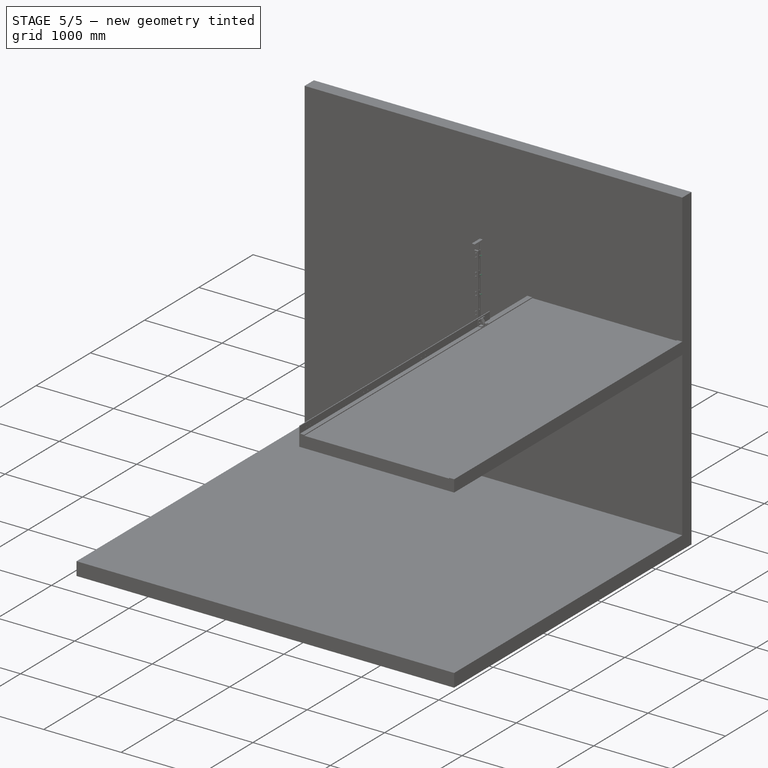
[diagram: stage 5 of 5 — iso view after this stage's code; geometry added in this stage tinted green]
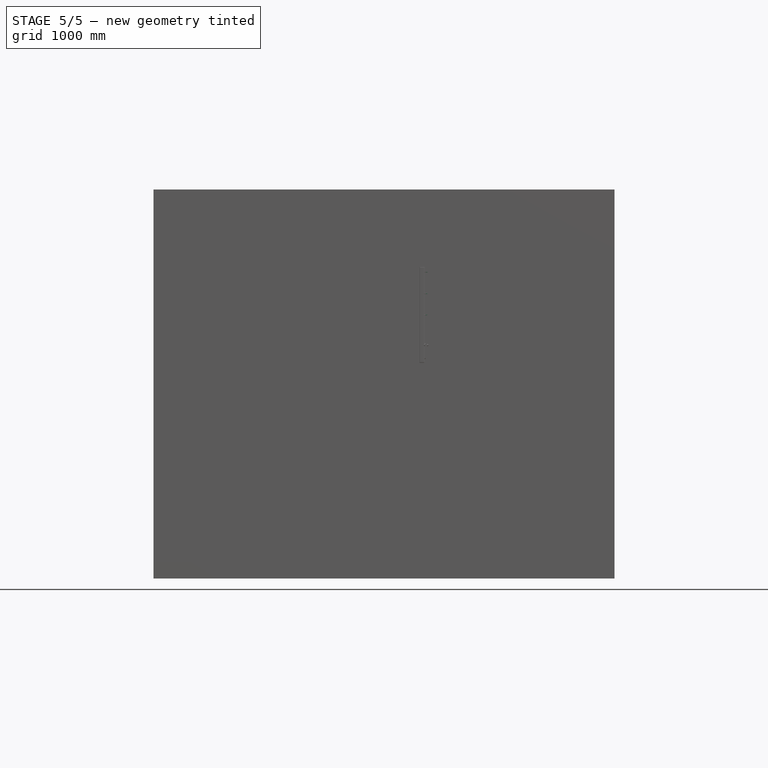
[diagram: stage 5 of 5 — front view after this stage's code; geometry added in this stage tinted green]
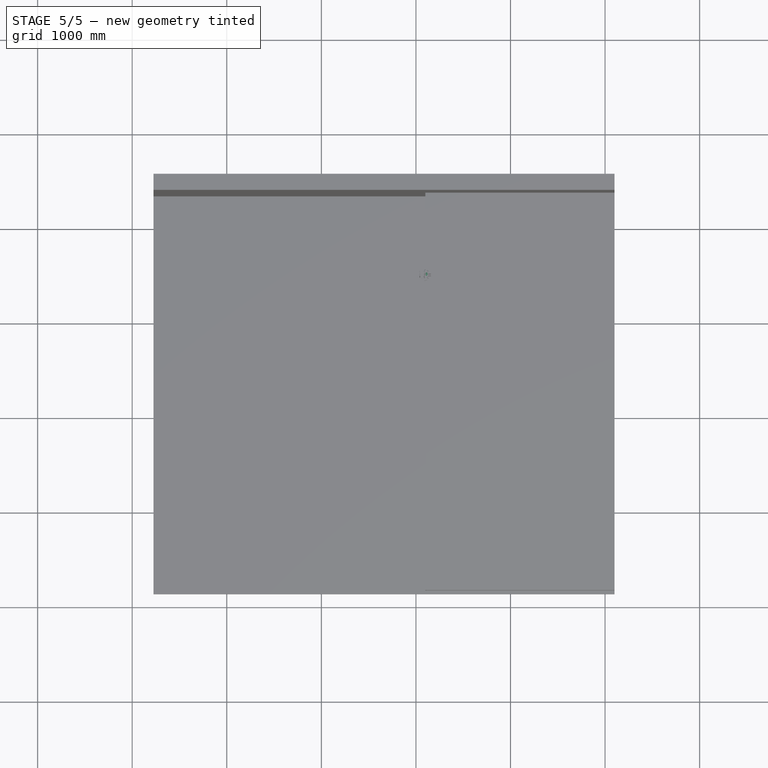
[diagram: stage 5 of 5 — top view after this stage's code; geometry added in this stage tinted green]
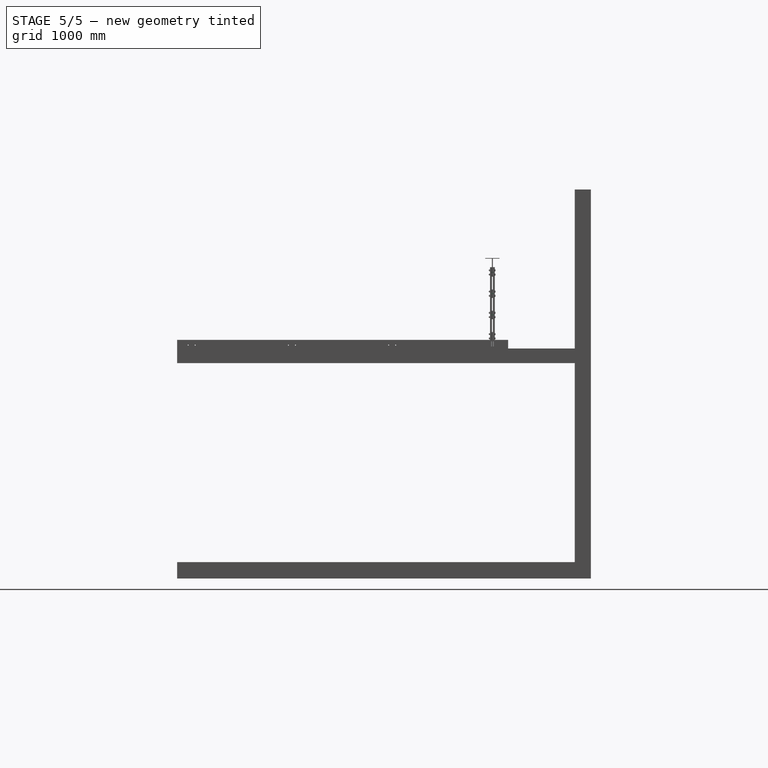
[diagram: stage 5 of 5 — right view after this stage's code; geometry added in this stage tinted green]
FEATURE [Part::Part2DObjectPython] Circle001  # Draft 2D object (typed FeaturePython)
  FirstAngle = 0
  LastAngle = 0
  MakeFace = true
  Placement = pos=(64.3902,-411,100) rot=(0.57735,-0.57735,-0.57735;2.0944rad)
  Radius = 5
FEATURE [Part::Extrusion] Extrude001
  Base = -> Circle001
  Dir = (1,0,0)
  DirMode = 0
  FaceMakerClass = Part::FaceMakerBullseye
  LengthFwd = 80
  LengthRev = 0
  Placement = pos=(25,0,0) rot=(0,0,1;0rad)
  Solid = false
  Symmetric = true
FEATURE [Part::FeaturePython] Array001  # Draft array (typed FeaturePython)
  Angle = 360
  ArrayType = 0
  Axis = (0,0,1)
  Base = -> Extrude001
  Center = (0,0,0)
  Fuse = false
  IntervalAxis = (0,0,0)
  IntervalX = (0,0,45)
  IntervalY = (0,0,225)
  IntervalZ = (0,0,0)
  NumberPolar = 1
  NumberX = 2
  NumberY = 5
  NumberZ = 1
  Placement = pos=(0,0,-27.5) rot=(0,0,1;0rad)
FEATURE [Part::Part2DObjectPython] Rectangle  # Draft 2D object (typed FeaturePython)
  ChamferSize = 0
  Columns = 1
  FilletRadius = 0
  Height = 50
  Length = 10
  MakeFace = true
  Placement = pos=(84.3902,-436,432.5) rot=(0,0,1;0rad)
  Rows = 1
FEATURE [Part::Extrusion] Extrude005
  Base = -> Rectangle
  Dir = (0,0,1)
  DirMode = 0
  FaceMakerClass = Part::FaceMakerBullseye
  LengthFwd = 90
  LengthRev = 0
  Placement = pos=(0,0,67.5) rot=(0,0,1;0rad)
  Solid = false
  Symmetric = false
FEATURE [Part::Chamfer] Chamfer001
  Base = -> Extrude005
  Edges = 4 edges r=5: [Edge3,Edge4,Edge9,Edge10]
FEATURE [Part::FeaturePython] Array002  # Draft array (typed FeaturePython)
  Angle = 360
  ArrayType = 0
  Axis = (0,0,1)
  Base = -> Chamfer001
  Center = (0,0,0)
  Fuse = false
  IntervalAxis = (0,0,0)
  IntervalX = (0,0,225)
  IntervalY = (0,1,0)
  IntervalZ = (0,0,0)
  NumberPolar = 1
  NumberX = 2
  NumberY = 1
  NumberZ = 1
FEATURE [Part::Part2DObjectPython] Circle002  # Draft 2D object (typed FeaturePython)
  FirstAngle = 0
  LastAngle = 0
  MakeFace = true
  Placement = pos=(89.3902,-420.3,545) rot=(1,0,0;1.5708rad)
  Radius = 2.5
FEATURE [Part::Extrusion] Extrude006
  Base = -> Circle002
  Dir = (0,1,0)
  DirMode = 0
  FaceMakerClass = Part::FaceMakerBullseye
  LengthFwd = 35
  LengthRev = 0
  Solid = false
  Symmetric = false
FEATURE [Part::FeaturePython] Array006  # Draft array (typed FeaturePython)
  Angle = 360
  ArrayType = 0
  Axis = (0,0,1)
  Base = -> Extrude006
  Center = (0,0,0)
  Fuse = false
  IntervalAxis = (0,0,0)
  IntervalX = (0,0,225)
  IntervalY = (0,0,0)
  IntervalZ = (0,0,0)
  NumberPolar = 1
  NumberX = 3
  NumberY = 0
  NumberZ = 1
FEATURE [Part::Compound] Compound005
  Links = -> [Array006,Array001]
FEATURE [Part::Cut] Cut002  label="plates"
  Base = -> Array002
  Placement = pos=(2475,-436.61,2070) rot=(0,0,-1;1.5708rad)
  Tool = -> Compound005
FEATURE [Part::Torus] Torus
  Angle1 = -180
  Angle2 = 180
  Angle3 = 360
  AttacherType = Attacher::AttachEngine3D
  Placement = pos=(0,0,0) rot=(1,0,0;1.5708rad)
  Radius1 = 10
  Radius2 = 2.5
FEATURE [Part::MultiFuse] Fusion
  Placement = pos=(89.3902,-365.3,545) rot=(0.57735,-0.57735,-0.57735;2.0944rad)
  Shapes = -> [Cylinder,Torus]
FEATURE [Part::FeaturePython] Array004  label="railing_eyelet"  # Draft array (typed FeaturePython)
  Angle = 360
  ArrayType = 0
  Axis = (0,0,1)
  Base = -> Fusion
  Center = (0,0,0)
  Fuse = false
  IntervalAxis = (0,0,0)
  IntervalX = (0,0,225)
  IntervalY = (630,0,615)
  IntervalZ = (0,0,0)
  NumberPolar = 1
  NumberX = 3
  NumberY = 1
  NumberZ = 1
  Placement = pos=(2475,-436.61,2070) rot=(0,0,-1;1.5708rad)
FEATURE [Part::Compound] Compound
  Links = -> [Panel,Cut001,Cut002,Array007,Array004,Compound009,Cut006,Array011]
FEATURE [TechDraw::DrawSVGTemplate] Template
  Height = 420
  Orientation = 1
  Width = 594
FEATURE [TechDraw::DrawProjGroupItem] ProjItem  label="Front"
  ArcCenterMarks = true
  CenterScale = 2
  Direction = (0,-1,0)
  HardHidden = false
  HiddenWidth = 0.15
  HorizCenterLine = false
  IsoCount = 0
  IsoHidden = false
  IsoVisible = false
  IsoWidth = 0.3
  KeepLabel = false
  LineWidth = 0.7
  Rotation = 0
  RotationVector = (1,0,0)
  ScaleType = 0
  SeamHidden = false
  SeamVisible = false
  ShowSectionLine = true
  SmoothHidden = false
  SmoothVisible = false
  Source = -> Cut006
  Type = 0
  VertCenterLine = false
  X = 0
  Y = 75
FEATURE [TechDraw::DrawProjGroupItem] ProjItem001  label="Left"
  ArcCenterMarks = true
  CenterScale = 2
  Direction = (-1,0,0)
  HardHidden = true
  HiddenWidth = 0.15
  HorizCenterLine = false
  IsoCount = 0
  IsoHidden = false
  IsoVisible = false
  IsoWidth = 0.3
  KeepLabel = false
  LineWidth = 0.7
  Rotation = 0
  RotationVector = (0,1,0)
  ScaleType = 0
  SeamHidden = false
  SeamVisible = false
  ShowSectionLine = true
  SmoothHidden = false
  SmoothVisible = false
  Source = -> Cut006
  Type = 1
  VertCenterLine = false
  X = 140
  Y = 0
FEATURE [TechDraw::DrawProjGroupItem] ProjItem002  label="Top"
  ArcCenterMarks = true
  CenterScale = 2
  Direction = (0,0,1)
  HardHidden = true
  HiddenWidth = 0.15
  HorizCenterLine = false
  IsoCount = 0
  IsoHidden = false
  IsoVisible = false
  IsoWidth = 0.3
  KeepLabel = false
  LineWidth = 0.7
  Rotation = 0
  RotationVector = (1,0,0)
  ScaleType = 0
  SeamHidden = false
  SeamVisible = false
  ShowSectionLine = true
  SmoothHidden = false
  SmoothVisible = false
  Source = -> Cut006
  Type = 4
  VertCenterLine = false
  X = 0
  Y = -100
FEATURE [TechDraw::DrawProjGroup] ProjGroup
  Anchor = -> ProjItem
  AutoDistribute = true
  KeepLabel = false
  ProjectionType = 0
  Rotation = 0
  ScaleType = 0
  Source = -> Cut006
  Views = -> [ProjItem,ProjItem001,ProjItem002]
  X = 149.073
  Y = 319.489
  spacingX = 25
  spacingY = 25
FEATURE [TechDraw::DrawViewPart] View
  ArcCenterMarks = true
  CenterScale = 2
  Direction = (1,0.5,1)
  HardHidden = true
  HiddenWidth = 0.15
  HorizCenterLine = false
  IsoCount = 0
  IsoHidden = false
  IsoVisible = false
  IsoWidth = 0.3
  KeepLabel = false
  LineWidth = 0.7
  Rotation = 0
  ScaleType = 2
  SeamHidden = false
  SeamVisible = false
  ShowSectionLine = true
  SmoothHidden = false
  SmoothVisible = false
  Source = -> Cut006
  VertCenterLine = false
  X = 161.886
  Y = 97.0166
FEATURE [TechDraw::DrawViewPart] View001
  ArcCenterMarks = true
  CenterScale = 2
  Direction = (0,1,0)
  HardHidden = false
  HiddenWidth = 0.15
  HorizCenterLine = false
  IsoCount = 0
  IsoHidden = false
  IsoVisible = false
  IsoWidth = 0.3
  KeepLabel = false
  LineWidth = 0.7
  Rotation = 0
  Scale = 0.2
  ScaleType = 2
  SeamHidden = false
  SeamVisible = false
  ShowSectionLine = true
  SmoothHidden = false
  SmoothVisible = false
  Source = -> Panel
  VertCenterLine = false
  X = 415.807
  Y = 223.977
FEATURE [TechDraw::DrawPage] Page
  ProjectionType = 0
  Template = -> Template
  Views = -> [ProjGroup,View,View001]
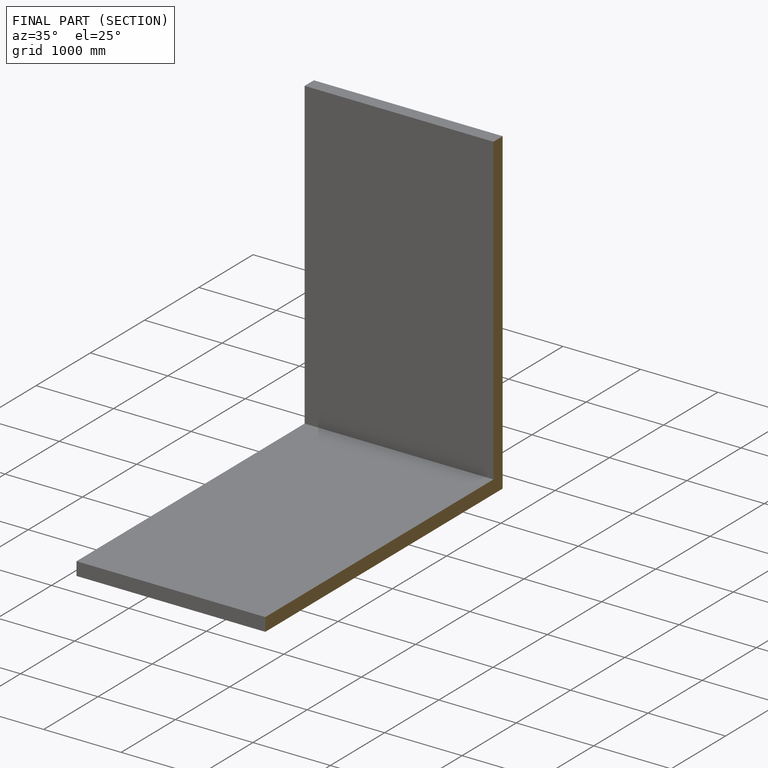
[diagram: finished part — half-section view (interior)]
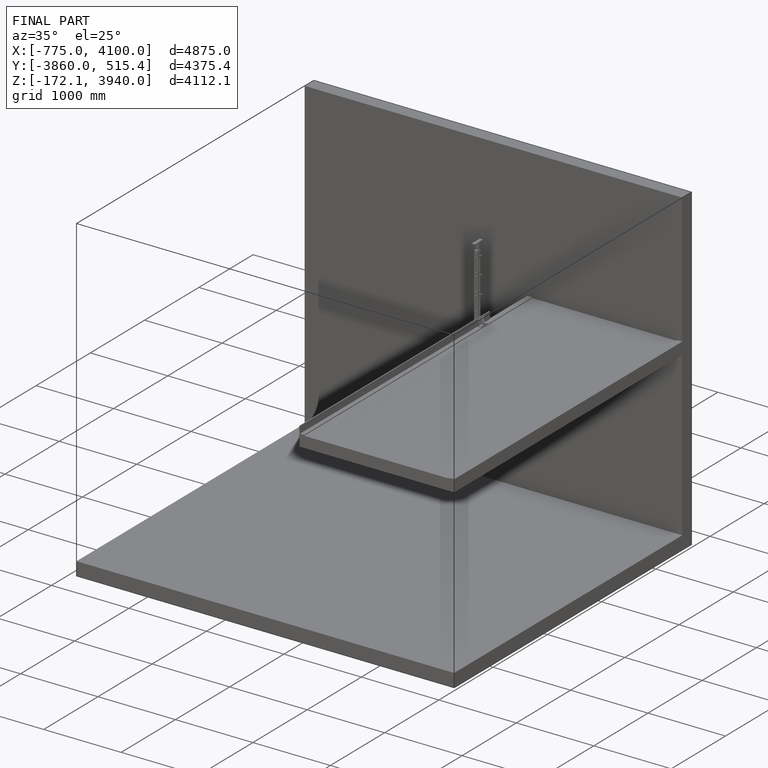
[diagram: finished part — iso view with bounding-box wireframe]
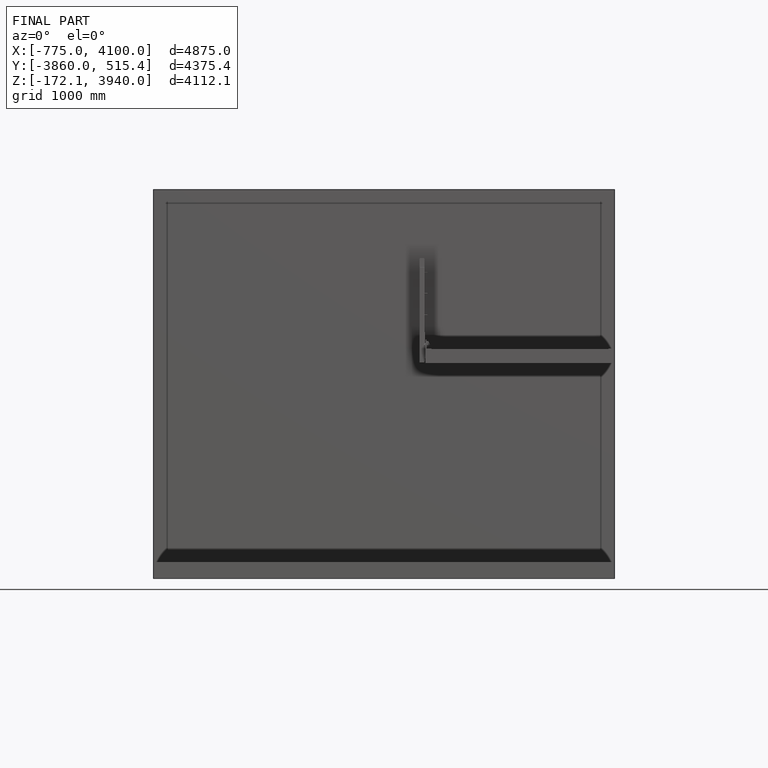
[diagram: finished part — front view with bounding-box wireframe]
